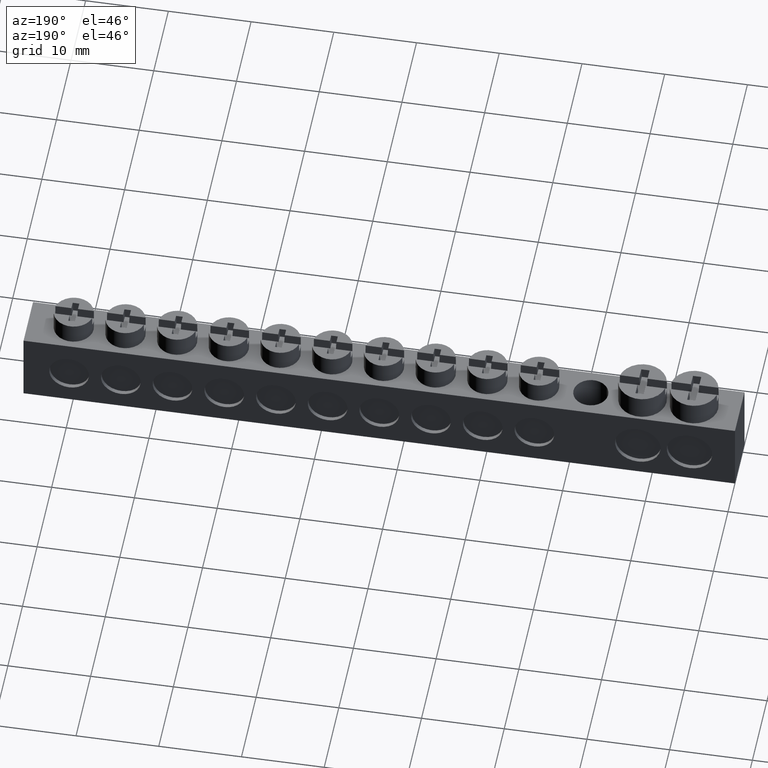
[diagram: clean part render]
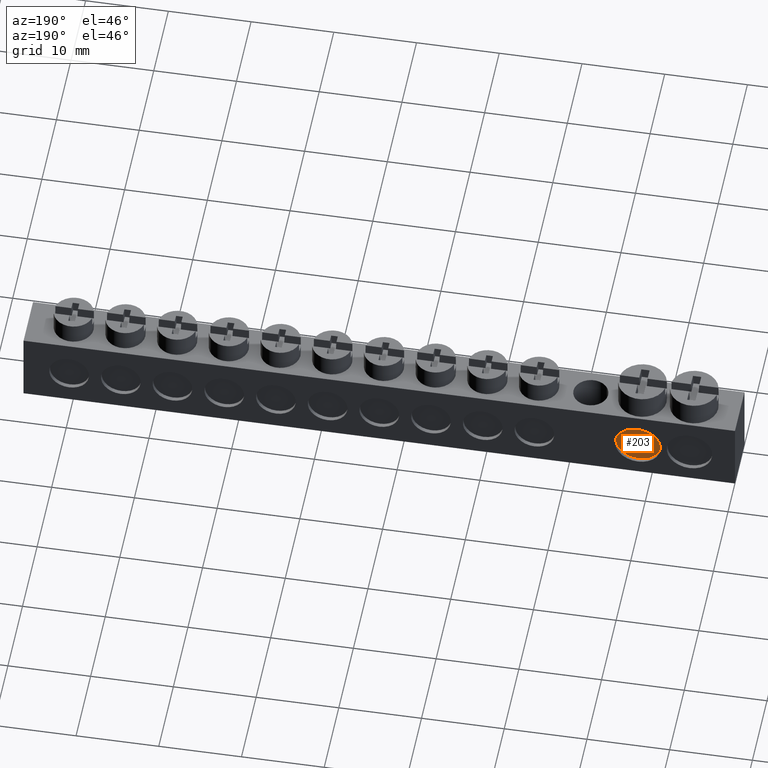
[diagram: same view with one face highlighted and labeled with its STEP entity id]
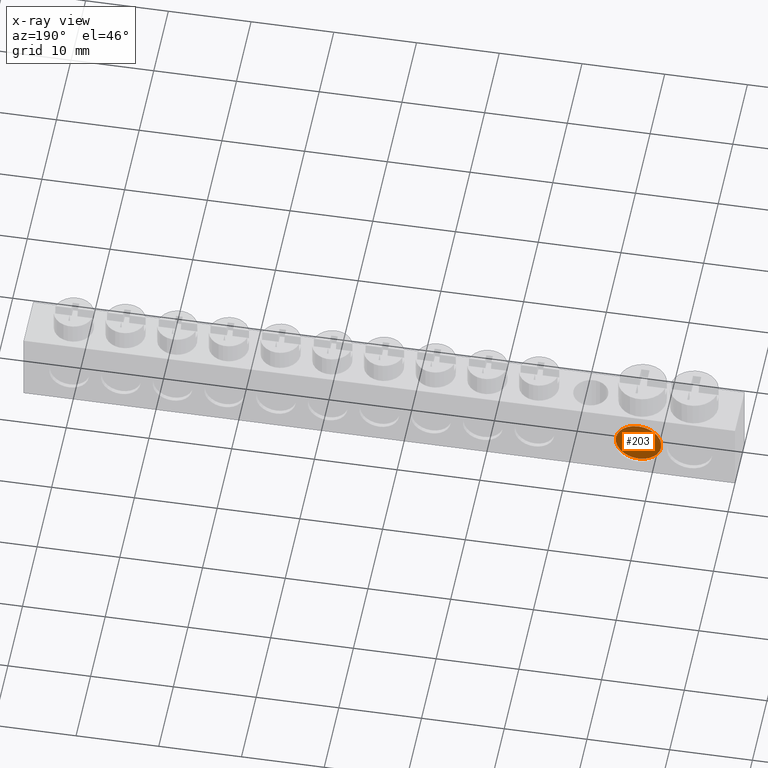
[diagram: x-ray of the same camera — body ghosted, the highlighted face saturated]
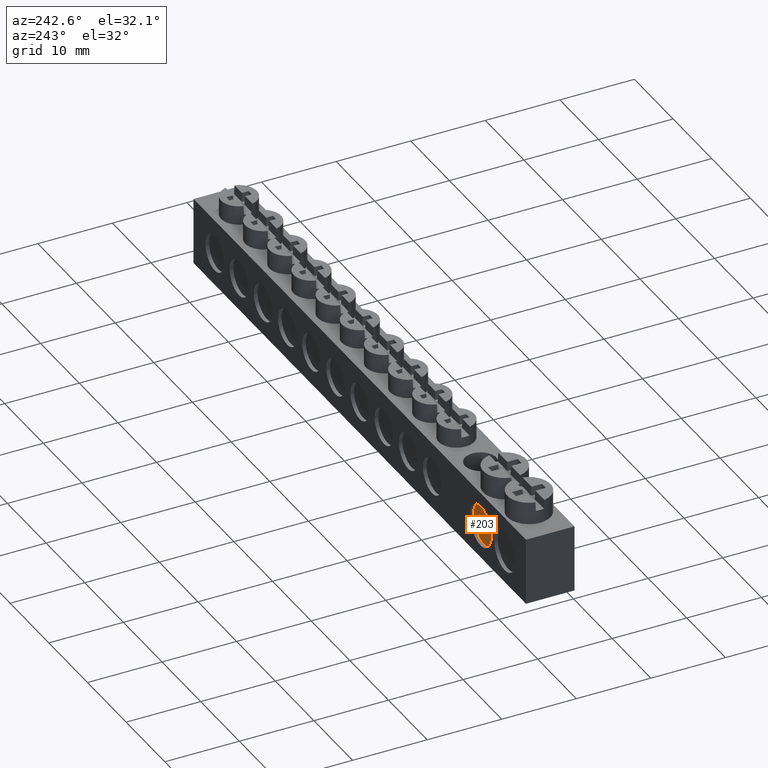
[diagram: same view with one face highlighted and labeled with its STEP entity id]
A machine part, auxiliary view. The second image highlights one B-rep face of the part: STEP entity #203.
The next image is the same camera in x-ray: the body ghosted, the highlighted face saturated — about 0% of this face is hidden behind the body in this view.
A second angle (auxiliary view) of the same face is appended — the face is thin or edge-on in the first view.
In plain terms, the highlighted planar face has unit normal (0, -1, 0).
Its self-contained STEP definition (entity closure, byte-faithful):
#30 = EDGE_CURVE ( 'NONE', #3943, #3961, #7518, .T. ) ;
#203 = ADVANCED_FACE ( 'NONE', ( #1347 ), #1359, .F. ) ;
#564 = DIRECTION ( 'NONE',  ( 0.0000000000000000000, 0.0000000000000000000, -1.000000000000000000 ) ) ;
#568 = CARTESIAN_POINT ( 'NONE',  ( 11.52500000000000000, 6.000000000000000000, 4.399999999999999500 ) ) ;
#589 = DIRECTION ( 'NONE',  ( 0.0000000000000000000, 1.000000000000000000, 0.0000000000000000000 ) ) ;
#1342 = CARTESIAN_POINT ( 'NONE',  ( 0.5000000000000000000, 6.000000000000000000, 0.5000000000000000000 ) ) ;
#1347 = FACE_OUTER_BOUND ( 'NONE', #1449, .T. ) ;
#1359 = PLANE ( 'NONE',  #7832 ) ;
#1361 = DIRECTION ( 'NONE',  ( 0.0000000000000000000, -0.0000000000000000000, -1.000000000000000000 ) ) ;
#1365 = DIRECTION ( 'NONE',  ( 0.0000000000000000000, -1.000000000000000000, 0.0000000000000000000 ) ) ;
#1449 = EDGE_LOOP ( 'NONE', ( #3395, #3354 ) ) ;
#1514 = EDGE_CURVE ( 'NONE', #3961, #3943, #2804, .T. ) ;
#2804 = CIRCLE ( 'NONE', #2811, 2.749999999999998200 ) ;
#2811 = AXIS2_PLACEMENT_3D ( 'NONE', #5251, #5256, #5253 ) ;
#3354 = ORIENTED_EDGE ( 'NONE', *, *, #30, .T. ) ;
#3395 = ORIENTED_EDGE ( 'NONE', *, *, #1514, .T. ) ;
#3943 = VERTEX_POINT ( 'NONE', #6489 ) ;
#3961 = VERTEX_POINT ( 'NONE', #6486 ) ;
#5251 = CARTESIAN_POINT ( 'NONE',  ( 11.52500000000000000, 6.000000000000000000, 4.399999999999999500 ) ) ;
#5253 = DIRECTION ( 'NONE',  ( 0.0000000000000000000, 0.0000000000000000000, -1.000000000000000000 ) ) ;
#5256 = DIRECTION ( 'NONE',  ( 0.0000000000000000000, 1.000000000000000000, 0.0000000000000000000 ) ) ;
#6486 = CARTESIAN_POINT ( 'NONE',  ( 11.52500000000000000, 6.000000000000000000, 1.650000000000001200 ) ) ;
#6489 = CARTESIAN_POINT ( 'NONE',  ( 11.52500000000000000, 6.000000000000000000, 7.149999999999997700 ) ) ;
#7516 = AXIS2_PLACEMENT_3D ( 'NONE', #568, #589, #564 ) ;
#7518 = CIRCLE ( 'NONE', #7516, 2.749999999999998200 ) ;
#7832 = AXIS2_PLACEMENT_3D ( 'NONE', #1342, #1365, #1361 ) ;